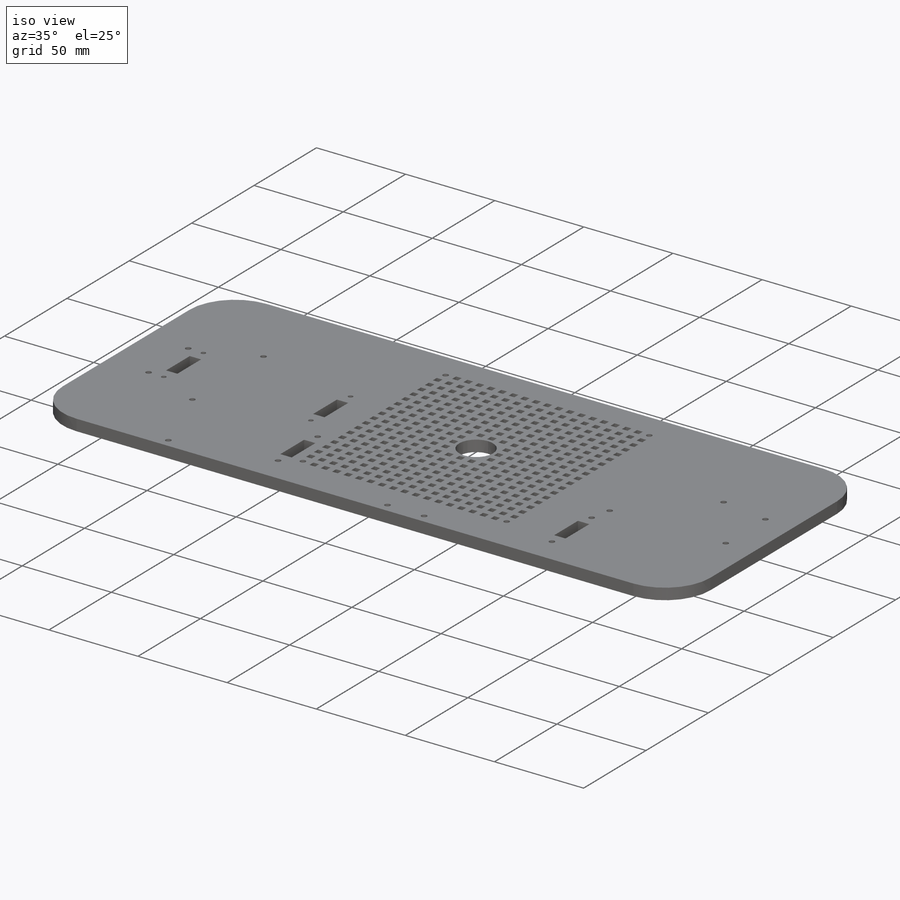
[diagram: iso view]
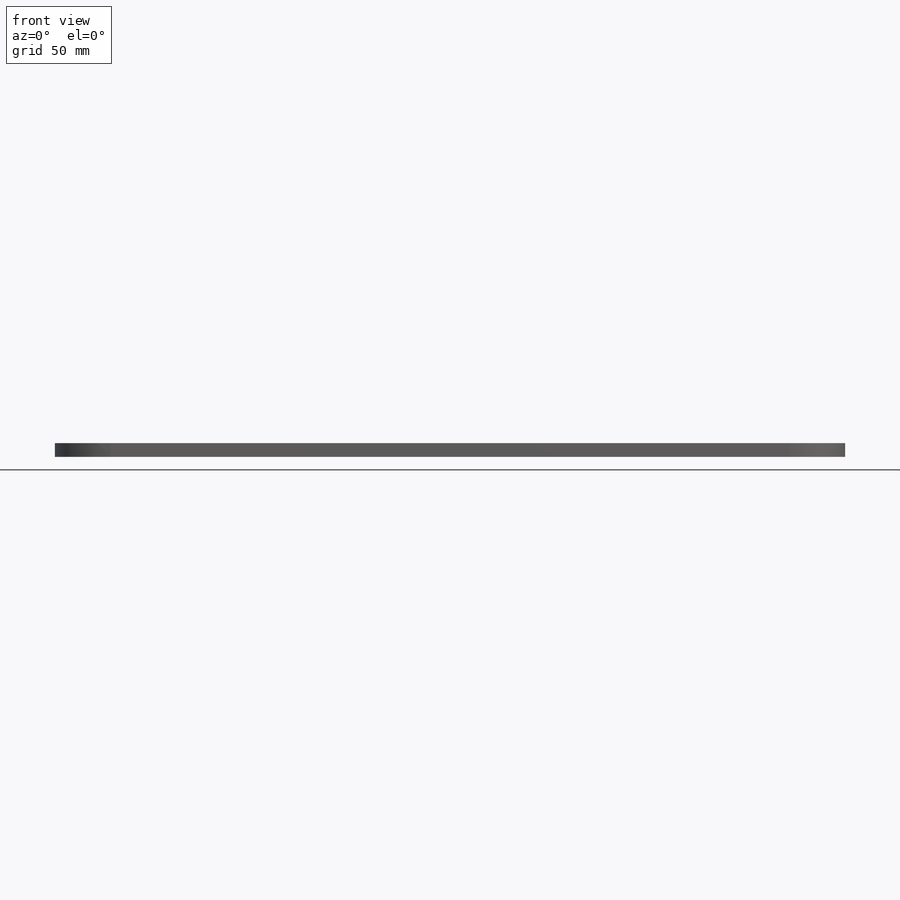
[diagram: front view]
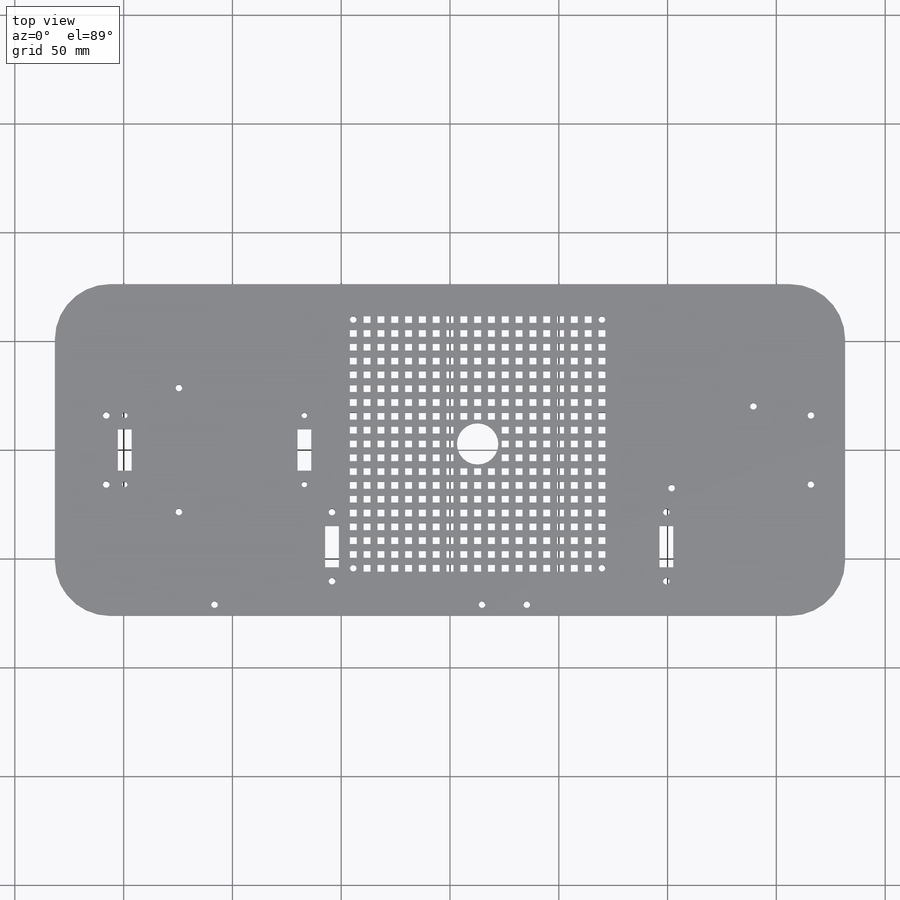
[diagram: top view]
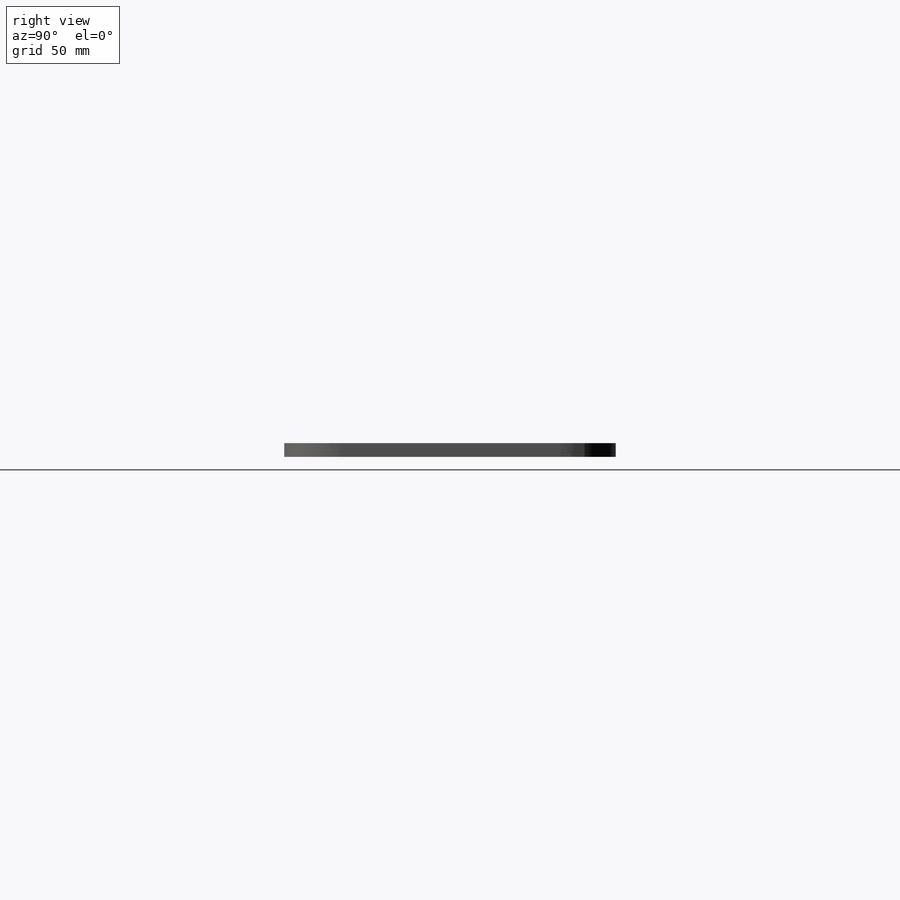
[diagram: right view]
SOLIDWORKS PART (.sldprt)
format: sldprt  version: not decoded by parser v0  size: 1,783,296 bytes
history: native  units: mm
features: sketch x8, cut_extrude x7, material x1, extrude x1 (+13 scaffold rows collapsed)
feature tree (30):
  scaffold x13  (default folders/planes/origin — collapsed)
  material  "Material <not specified>"
  sketch  "Sketch3"  dims[D3=25.4mm D1=152.4mm D2=363.22mm]
  extrude  "Boss-Extrude2"  Depth=6.35mm
  sketch  "Sketch4"  dims[D3=3.0mm D10=3.0mm D11=3.0mm D1=137.16mm D2=16.256mm D6=42.164mm D7=56.134mm D8=37.592mm D9=37.592mm D4=2.0 D5=2.0]
  cut_extrude  "Cut-Extrude1"  [1 undecoded]
  sketch  "Sketch5"  dims[D4=2.5mm D1=32.131mm D2=6.35mm D3=19.05mm D5=15.875mm D6=41.275mm]
  cut_extrude  "Cut-Extrude2"  [1 undecoded]
  sketch  "Sketch6"  dims[D2=3.0mm D1=23.622mm D3=15.875mm D4=161.925mm]
  cut_extrude  "Cut-Extrude3"  [1 undecoded]
  sketch  "Sketch7"  dims[D6=3.0mm D7=3.0mm D13=3.0mm D14=3.0mm D1=~9.712976mm D2=19.05mm D3=6.35mm D4=15.875mm D5=15.875mm D8=6.35mm D9=19.05mm D10=6.35mm D11=15.875mm D12=15.875mm D15=147.32mm D16=15.875mm]
  cut_extrude  "Cut-Extrude4"  [1 undecoded]
  sketch  "Sketch8"  dims[c1.D1=19.05mm c1.D2=1.5875mm c1.D3=~2.22059mm c2.D3=90.0deg c3.D3=3.175mm c3.D4=3.175mm c3.D5=9.0 c3.D6=9.0 c3.D7=19.0 c3.D8=2.0 c3.D9=2.0]
  cut_extrude  "Cut-Extrude5"  [1 undecoded]
  sketch  "Sketch9"  dims[c1.D1=3.0mm c1.D3=3.0mm c1.D2=5.08mm c1.D4=5.08mm c1.D5=61.722mm c1.D6=69.85mm c1.D7=12.2682mm c1.D8=12.2682mm c1.D9=90.0deg c2.D7=12.446mm]
  cut_extrude  "Cut-Extrude6"  [1 undecoded]
  sketch  "Sketch10"  dims[D1=3.0mm D2=57.0mm D3=57.0mm]
  cut_extrude  "Cut-Extrude7"  [1 undecoded]
decode coverage: 9 of 16 modeling features carry decoded parameters
note: ~ marks probable driven/reference dimensions
note: 7 parameter values undecoded
summary: no parameter record found for 7 features
note: suppression state not decoded; provenance and decode notes live in map.json
